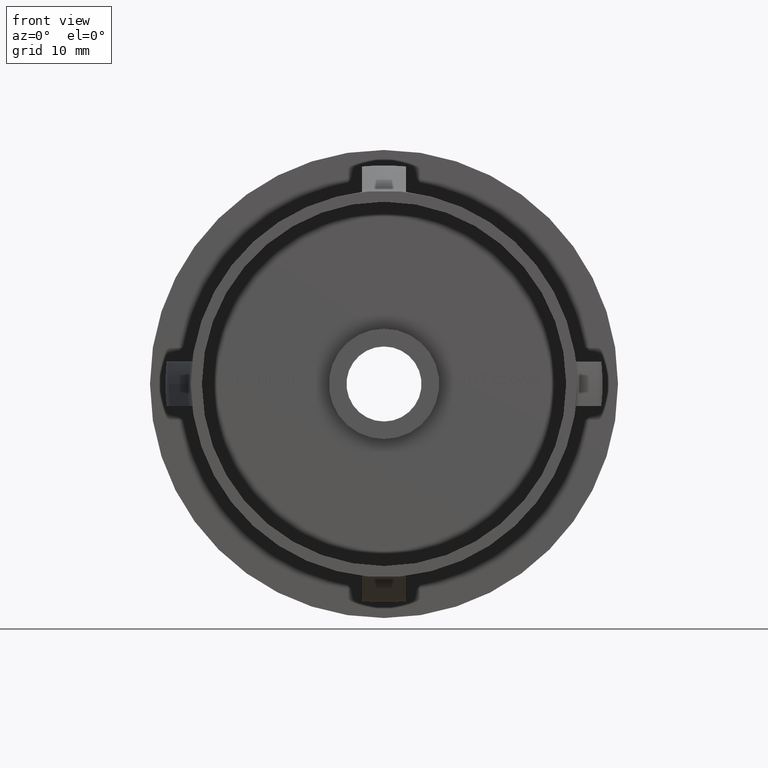
[diagram: clean part render]
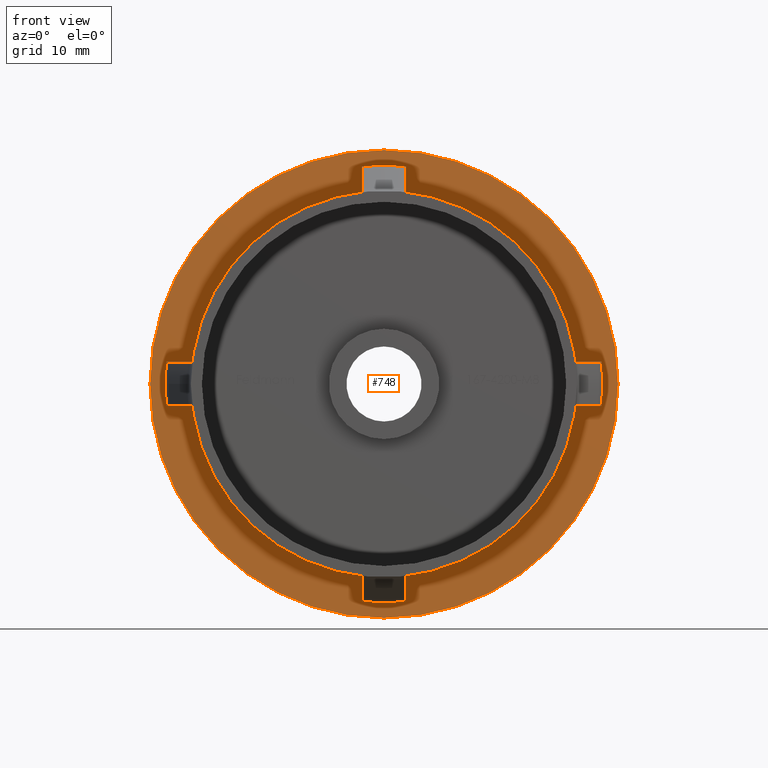
[diagram: same view with one face highlighted and labeled with its STEP entity id]
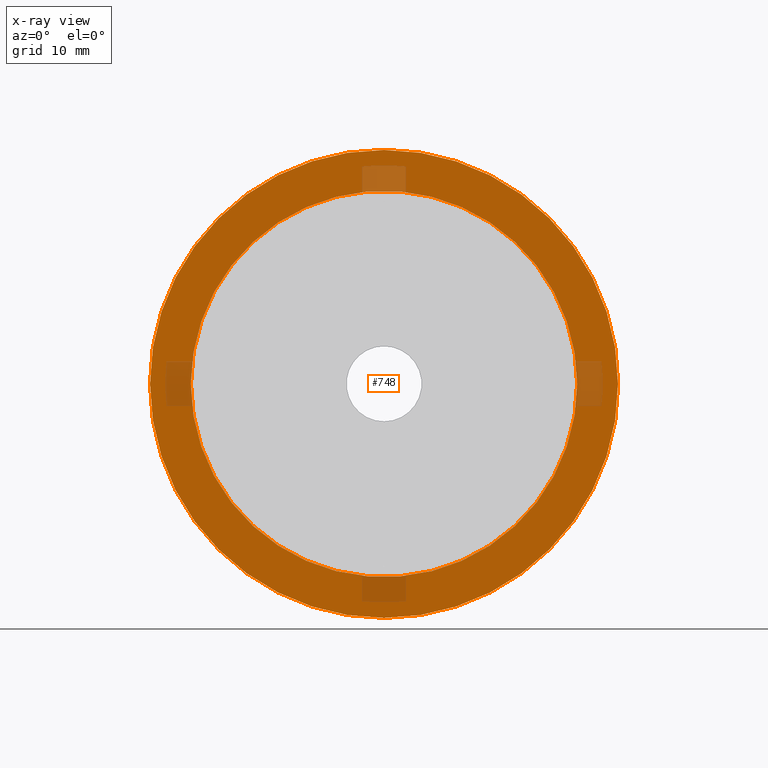
[diagram: x-ray of the same camera — body ghosted, the highlighted face saturated]
A machine part, front view. The second image highlights one B-rep face of the part: STEP entity #748.
The next image is the same camera in x-ray: the body ghosted, the highlighted face saturated — about 8% of this face is hidden behind the body in this view.
In plain terms, the highlighted planar face has unit normal (-0, 1, 0).
Its self-contained STEP definition (entity closure, byte-faithful):
#81 = CARTESIAN_POINT ( 'NONE',  ( 17.50000000000000000, 25.69999999999999900, 2.143131898507868200E-015 ) ) ;
#286 = ORIENTED_EDGE ( 'NONE', *, *, #9298, .T. ) ;
#748 = ADVANCED_FACE ( 'NONE', ( #8242, #7853 ), #6525, .F. ) ;
#1544 = CIRCLE ( 'NONE', #2389, 21.19999999999999600 ) ;
#2084 = EDGE_CURVE ( 'NONE', #5160, #3999, #12032, .T. ) ;
#2389 = AXIS2_PLACEMENT_3D ( 'NONE', #4882, #8829, #15206 ) ;
#2532 = DIRECTION ( 'NONE',  ( -1.714505518806297100E-016, 1.000000000000000000, -0.0000000000000000000 ) ) ;
#3264 = EDGE_CURVE ( 'NONE', #11582, #4947, #9827, .T. ) ;
#3341 = EDGE_LOOP ( 'NONE', ( #5551, #15698 ) ) ;
#3355 = DIRECTION ( 'NONE',  ( -1.000000000000000000, -1.982541115402065400E-016, 0.0000000000000000000 ) ) ;
#3999 = VERTEX_POINT ( 'NONE', #14752 ) ;
#4002 = CARTESIAN_POINT ( 'NONE',  ( 1.836970198721037800E-016, 25.69999999999999600, 0.0000000000000000000 ) ) ;
#4221 = AXIS2_PLACEMENT_3D ( 'NONE', #9803, #2532, #3355 ) ;
#4304 = EDGE_LOOP ( 'NONE', ( #286, #8263 ) ) ;
#4882 = CARTESIAN_POINT ( 'NONE',  ( 1.836970198721037800E-016, 25.69999999999999600, 0.0000000000000000000 ) ) ;
#4947 = VERTEX_POINT ( 'NONE', #8687 ) ;
#5146 = CARTESIAN_POINT ( 'NONE',  ( 1.836970198721037300E-016, 25.69999999999999600, 0.0000000000000000000 ) ) ;
#5160 = VERTEX_POINT ( 'NONE', #8100 ) ;
#5203 = DIRECTION ( 'NONE',  ( -1.714505518806297100E-016, 1.000000000000000000, -0.0000000000000000000 ) ) ;
#5357 = DIRECTION ( 'NONE',  ( -1.000000000000000000, -1.636531581110195700E-016, 0.0000000000000000000 ) ) ;
#5551 = ORIENTED_EDGE ( 'NONE', *, *, #7171, .F. ) ;
#6371 = DIRECTION ( 'NONE',  ( -1.000000000000000000, -1.714505518806297100E-016, 0.0000000000000000000 ) ) ;
#6525 = PLANE ( 'NONE',  #14553 ) ;
#7171 = EDGE_CURVE ( 'NONE', #3999, #5160, #1544, .T. ) ;
#7626 = DIRECTION ( 'NONE',  ( -1.000000000000000000, -1.982541115402065400E-016, 0.0000000000000000000 ) ) ;
#7665 = CARTESIAN_POINT ( 'NONE',  ( 21.19999999999999600, 25.69999999999999900, 0.0000000000000000000 ) ) ;
#7853 = FACE_BOUND ( 'NONE', #4304, .T. ) ;
#7899 = CIRCLE ( 'NONE', #4221, 17.50000000000000000 ) ;
#8100 = CARTESIAN_POINT ( 'NONE',  ( 21.19999999999999600, 25.69999999999999900, 2.596251214192388400E-015 ) ) ;
#8242 = FACE_OUTER_BOUND ( 'NONE', #3341, .T. ) ;
#8263 = ORIENTED_EDGE ( 'NONE', *, *, #3264, .T. ) ;
#8687 = CARTESIAN_POINT ( 'NONE',  ( -17.50000000000000000, 25.69999999999999200, 0.0000000000000000000 ) ) ;
#8829 = DIRECTION ( 'NONE',  ( -1.714505518806297100E-016, 1.000000000000000000, -0.0000000000000000000 ) ) ;
#9298 = EDGE_CURVE ( 'NONE', #4947, #11582, #7899, .T. ) ;
#9803 = CARTESIAN_POINT ( 'NONE',  ( 1.836970198721037300E-016, 25.69999999999999600, 0.0000000000000000000 ) ) ;
#9827 = CIRCLE ( 'NONE', #11257, 17.50000000000000000 ) ;
#11257 = AXIS2_PLACEMENT_3D ( 'NONE', #5146, #5203, #7626 ) ;
#11582 = VERTEX_POINT ( 'NONE', #81 ) ;
#11805 = AXIS2_PLACEMENT_3D ( 'NONE', #4002, #12960, #5357 ) ;
#12032 = CIRCLE ( 'NONE', #11805, 21.19999999999999600 ) ;
#12838 = DIRECTION ( 'NONE',  ( -1.714505518806297100E-016, 1.000000000000000000, 0.0000000000000000000 ) ) ;
#12960 = DIRECTION ( 'NONE',  ( -1.714505518806297100E-016, 1.000000000000000000, -0.0000000000000000000 ) ) ;
#14553 = AXIS2_PLACEMENT_3D ( 'NONE', #7665, #12838, #6371 ) ;
#14752 = CARTESIAN_POINT ( 'NONE',  ( -21.19999999999999600, 25.69999999999999200, 0.0000000000000000000 ) ) ;
#15206 = DIRECTION ( 'NONE',  ( -1.000000000000000000, -1.636531581110195700E-016, 0.0000000000000000000 ) ) ;
#15698 = ORIENTED_EDGE ( 'NONE', *, *, #2084, .F. ) ;